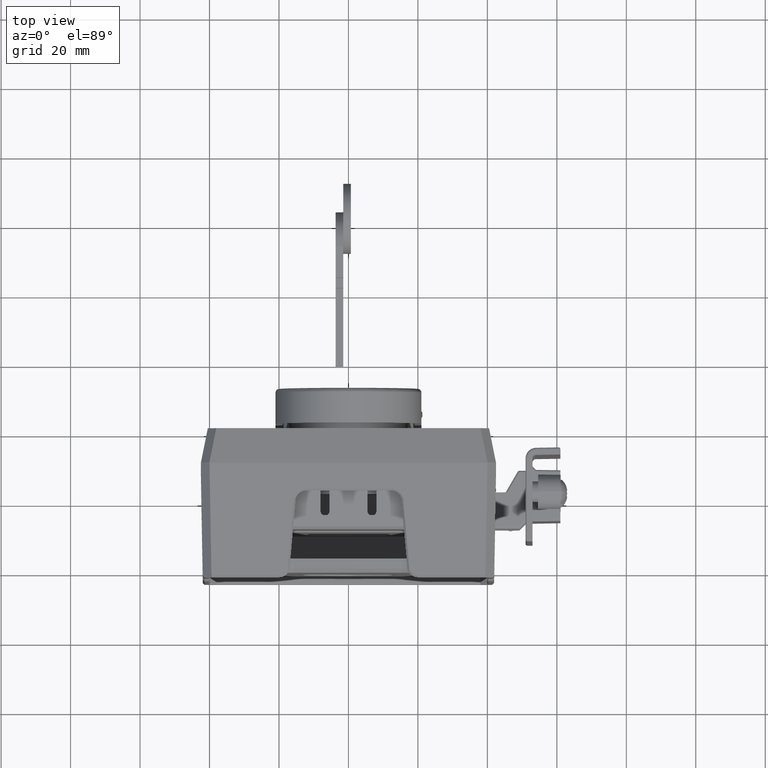
[diagram: clean part render]
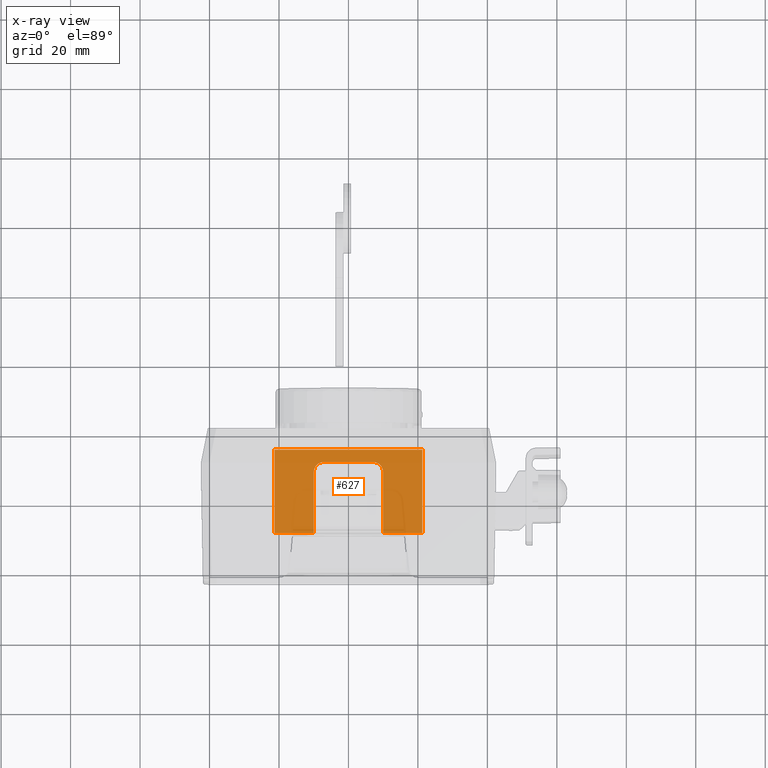
[diagram: x-ray — body ghosted, one internal face saturated and labeled with its STEP entity id]
A machine part, top view, then the same camera in x-ray: the body is ghosted and one INTERNAL B-rep face — a face not visible from any outside direction — is saturated and labeled: STEP entity #627.
In plain terms, the highlighted planar face has unit normal (0, 0, -1).
Its self-contained STEP definition (entity closure, byte-faithful):
#627=ADVANCED_FACE('',(#3900),#3899,.F.);
#3899=PLANE('',#19449);
#3900=FACE_OUTER_BOUND('',#19450,.T.);
#19446=CARTESIAN_POINT('',(2.54999999998E+01,-2.73999994871E+01,-7.94999999999E+01));
#19447=DIRECTION('',(0.00000000000E+00,0.00000000000E+00,-1.00000000000E+00));
#19448=DIRECTION('',(-1.00000000000E+00,0.00000000000E+00,0.00000000000E+00));
#19449=AXIS2_PLACEMENT_3D('',#19446,#19447,#19448);
#19450=EDGE_LOOP('',(#29376,#29377,#29378,#29379,#29380,#29381,#29382,#29383,#29384,#29385));
#29376=ORIENTED_EDGE('',*,*,#37446,.T.);
#29377=ORIENTED_EDGE('',*,*,#37521,.T.);
#29378=ORIENTED_EDGE('',*,*,#37349,.F.);
#29379=ORIENTED_EDGE('',*,*,#37522,.F.);
#29380=ORIENTED_EDGE('',*,*,#37401,.F.);
#29381=ORIENTED_EDGE('',*,*,#37439,.F.);
#29382=ORIENTED_EDGE('',*,*,#37500,.T.);
#29383=ORIENTED_EDGE('',*,*,#37523,.T.);
#29384=ORIENTED_EDGE('',*,*,#37501,.T.);
#29385=ORIENTED_EDGE('',*,*,#37524,.T.);
#37349=EDGE_CURVE('',#44665,#44666,#44667,.T.);
#37401=EDGE_CURVE('',#45012,#45013,#45014,.T.);
#37439=EDGE_CURVE('',#45265,#45012,#45266,.T.);
#37446=EDGE_CURVE('',#45310,#45303,#45311,.T.);
#37500=EDGE_CURVE('',#45265,#45663,#45670,.T.);
#37501=EDGE_CURVE('',#45676,#45677,#45678,.T.);
#37521=EDGE_CURVE('',#45303,#44666,#45809,.T.);
#37522=EDGE_CURVE('',#45013,#44665,#45815,.T.);
#37523=EDGE_CURVE('',#45663,#45676,#45821,.T.);
#37524=EDGE_CURVE('',#45677,#45310,#45827,.T.);
#44665=VERTEX_POINT('',#71295);
#44666=VERTEX_POINT('',#71296);
#44667=LINE('',#71297,#71298);
#45012=VERTEX_POINT('',#71499);
#45013=VERTEX_POINT('',#71500);
#45014=LINE('',#71501,#71502);
#45265=VERTEX_POINT('',#71659);
#45266=CIRCLE('',#71663,3.00000000000E+00);
#45303=VERTEX_POINT('',#71681);
#45310=VERTEX_POINT('',#71686);
#45311=LINE('',#71687,#71688);
#45663=VERTEX_POINT('',#71892);
#45670=LINE('',#71896,#71897);
#45676=VERTEX_POINT('',#71899);
#45677=VERTEX_POINT('',#71900);
#45678=LINE('',#71901,#71902);
#45809=LINE('',#71978,#71979);
#45815=LINE('',#71981,#71982);
#45821=CIRCLE('',#71987,3.00000000000E+00);
#45827=LINE('',#71988,#71989);
#71295=CARTESIAN_POINT('',(2.12499999998E+01,-9.99999999999E-01,-7.94999999999E+01));
#71296=CARTESIAN_POINT('',(2.12499999998E+01,-2.49999995338E+01,-7.94999999999E+01));
#71297=CARTESIAN_POINT('',(2.12499999998E+01,-9.99999999999E-01,-7.94999999999E+01));
#71298=VECTOR('',#71299,2.39999995338E+01);
#71299=DIRECTION('',(0.00000000000E+00,-1.00000000000E+00,0.00000000000E+00));
#71499=CARTESIAN_POINT('',(1.00000000000E+01,-1.84999997918E+01,-7.94999999999E+01));
#71500=CARTESIAN_POINT('',(1.00000000000E+01,-9.99999999999E-01,-7.94999999999E+01));
#71501=CARTESIAN_POINT('',(1.00000000000E+01,-1.84999997918E+01,-7.94999999999E+01));
#71502=VECTOR('',#71503,1.74999997918E+01);
#71503=DIRECTION('',(0.00000000000E+00,1.00000000000E+00,0.00000000000E+00));
#71659=CARTESIAN_POINT('',(7.00000000000E+00,-2.14999997918E+01,-7.94999999999E+01));
#71660=CARTESIAN_POINT('',(7.00000000000E+00,-1.84999997918E+01,-7.94999999999E+01));
#71661=DIRECTION('',(-6.17225931799E-16,0.00000000000E+00,1.00000000000E+00));
#71662=DIRECTION('',(-1.00000000000E+00,-0.00000000000E+00,-6.17225931799E-16));
#71663=AXIS2_PLACEMENT_3D('',#71660,#71661,#71662);
#71681=CARTESIAN_POINT('',(-2.12499999998E+01,-2.49999995338E+01,-7.94999999999E+01));
#71686=CARTESIAN_POINT('',(-2.12499999998E+01,-9.99999999999E-01,-7.94999999999E+01));
#71687=CARTESIAN_POINT('',(-2.12499999998E+01,-9.99999999999E-01,-7.94999999999E+01));
#71688=VECTOR('',#71689,2.39999995338E+01);
#71689=DIRECTION('',(0.00000000000E+00,-1.00000000000E+00,0.00000000000E+00));
#71892=CARTESIAN_POINT('',(-7.00000000000E+00,-2.14999997918E+01,-7.94999999999E+01));
#71896=CARTESIAN_POINT('',(7.00000000000E+00,-2.14999997918E+01,-7.94999999999E+01));
#71897=VECTOR('',#71898,1.40000000000E+01);
#71898=DIRECTION('',(-1.00000000000E+00,0.00000000000E+00,0.00000000000E+00));
#71899=CARTESIAN_POINT('',(-1.00000000000E+01,-1.84999997918E+01,-7.94999999999E+01));
#71900=CARTESIAN_POINT('',(-1.00000000000E+01,-9.99999999999E-01,-7.94999999999E+01));
#71901=CARTESIAN_POINT('',(-1.00000000000E+01,-1.84999997918E+01,-7.94999999999E+01));
#71902=VECTOR('',#71903,1.74999997918E+01);
#71903=DIRECTION('',(0.00000000000E+00,1.00000000000E+00,0.00000000000E+00));
#71978=CARTESIAN_POINT('',(-2.12499999998E+01,-2.49999995338E+01,-7.94999999999E+01));
#71979=VECTOR('',#71980,4.24999999997E+01);
#71980=DIRECTION('',(1.00000000000E+00,0.00000000000E+00,0.00000000000E+00));
#71981=CARTESIAN_POINT('',(1.00000000000E+01,-9.99999999999E-01,-7.94999999999E+01));
#71982=VECTOR('',#71983,1.12499999998E+01);
#71983=DIRECTION('',(1.00000000000E+00,0.00000000000E+00,1.26318708581E-15));
#71984=CARTESIAN_POINT('',(-7.00000000000E+00,-1.84999997918E+01,-7.94999999999E+01));
#71985=DIRECTION('',(0.00000000000E+00,0.00000000000E+00,-1.00000000000E+00));
#71986=DIRECTION('',(1.00000000000E+00,-0.00000000000E+00,-0.00000000000E+00));
#71987=AXIS2_PLACEMENT_3D('',#71984,#71985,#71986);
#71988=CARTESIAN_POINT('',(-1.00000000000E+01,-9.99999999999E-01,-7.94999999999E+01));
#71989=VECTOR('',#71990,1.12499999998E+01);
#71990=DIRECTION('',(-1.00000000000E+00,0.00000000000E+00,0.00000000000E+00));